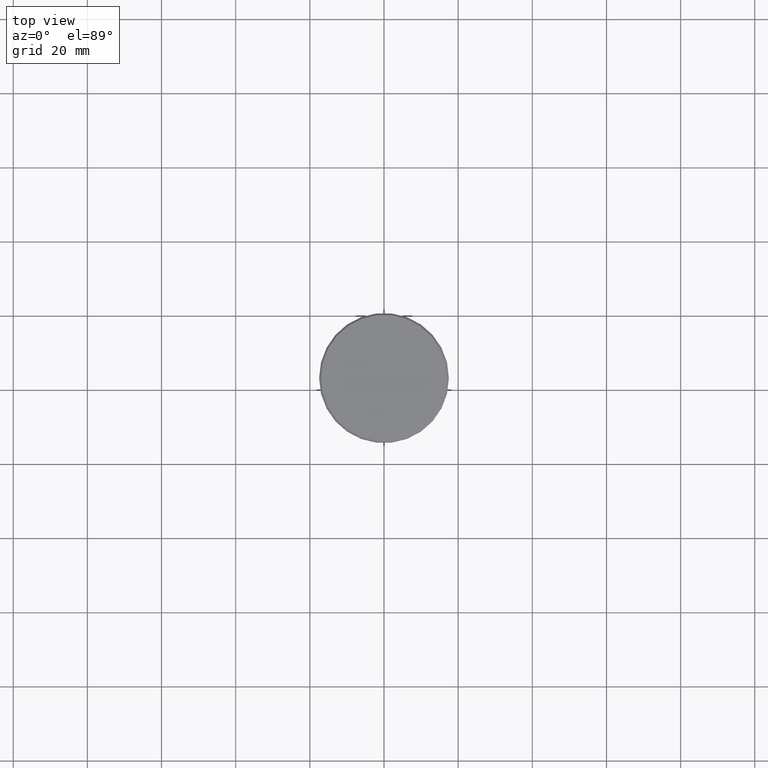
[diagram: clean part render]
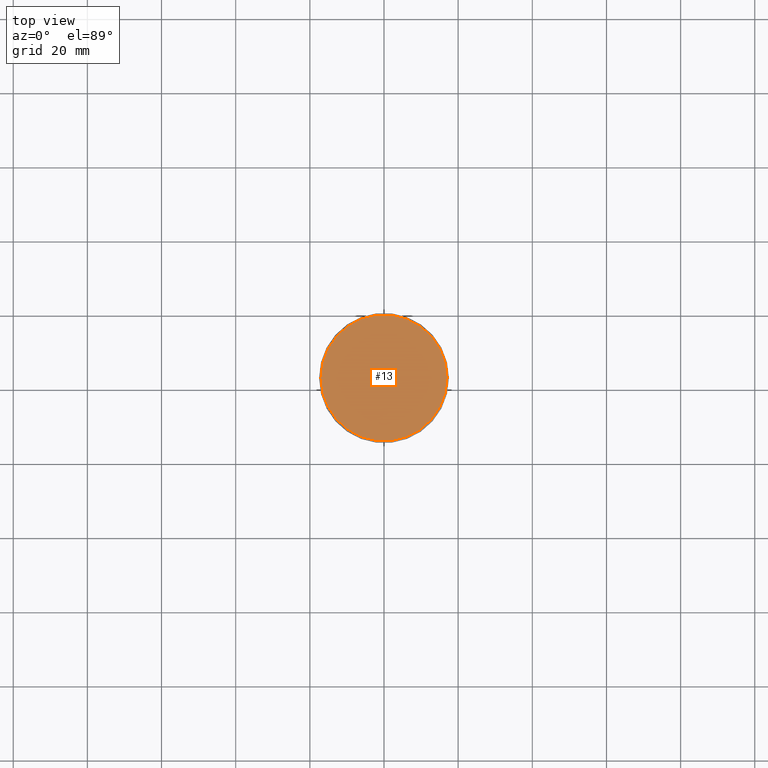
[diagram: same view with one face highlighted and labeled with its STEP entity id]
A machine part, top view. The second image highlights one B-rep face of the part: STEP entity #13.
In plain terms, the highlighted planar face has unit normal (0, -0, 1).
Its self-contained STEP definition (entity closure, byte-faithful):
#13 = ADVANCED_FACE ( 'NONE', ( #51 ), #950, .T. ) ;
#51 = FACE_OUTER_BOUND ( 'NONE', #382, .T. ) ;
#142 = AXIS2_PLACEMENT_3D ( 'NONE', #722, #1179, #364 ) ;
#154 = VERTEX_POINT ( 'NONE', #723 ) ;
#238 = CARTESIAN_POINT ( 'NONE',  ( 0.000000000000000000, 0.000000000000000000, 0.000000000000000000 ) ) ;
#276 = CIRCLE ( 'NONE', #142, 17.00000000000001421 ) ;
#314 = AXIS2_PLACEMENT_3D ( 'NONE', #726, #635, #641 ) ;
#364 = DIRECTION ( 'NONE',  ( 1.000000000000000000, 0.000000000000000000, 0.000000000000000000 ) ) ;
#366 = VERTEX_POINT ( 'NONE', #958 ) ;
#382 = EDGE_LOOP ( 'NONE', ( #856, #465 ) ) ;
#465 = ORIENTED_EDGE ( 'NONE', *, *, #583, .T. ) ;
#489 = AXIS2_PLACEMENT_3D ( 'NONE', #238, #1142, #612 ) ;
#583 = EDGE_CURVE ( 'NONE', #366, #154, #276, .T. ) ;
#612 = DIRECTION ( 'NONE',  ( 1.000000000000000000, 0.000000000000000000, 0.000000000000000000 ) ) ;
#635 = DIRECTION ( 'NONE',  ( -0.000000000000000000, -0.000000000000000000, 1.000000000000000000 ) ) ;
#641 = DIRECTION ( 'NONE',  ( 1.000000000000000000, 0.000000000000000000, 0.000000000000000000 ) ) ;
#722 = CARTESIAN_POINT ( 'NONE',  ( 0.000000000000000000, 0.000000000000000000, 0.000000000000000000 ) ) ;
#723 = CARTESIAN_POINT ( 'NONE',  ( -17.00000000000001421, 0.000000000000000000, 0.000000000000000000 ) ) ;
#726 = CARTESIAN_POINT ( 'NONE',  ( 0.000000000000000000, 0.000000000000000000, 0.000000000000000000 ) ) ;
#856 = ORIENTED_EDGE ( 'NONE', *, *, #930, .T. ) ;
#930 = EDGE_CURVE ( 'NONE', #154, #366, #1172, .T. ) ;
#950 = PLANE ( 'NONE',  #489 ) ;
#958 = CARTESIAN_POINT ( 'NONE',  ( 17.00000000000001421, 2.112515728529185250E-15, 0.000000000000000000 ) ) ;
#1142 = DIRECTION ( 'NONE',  ( 0.000000000000000000, -0.000000000000000000, 1.000000000000000000 ) ) ;
#1172 = CIRCLE ( 'NONE', #314, 17.00000000000001421 ) ;
#1179 = DIRECTION ( 'NONE',  ( -0.000000000000000000, -0.000000000000000000, 1.000000000000000000 ) ) ;